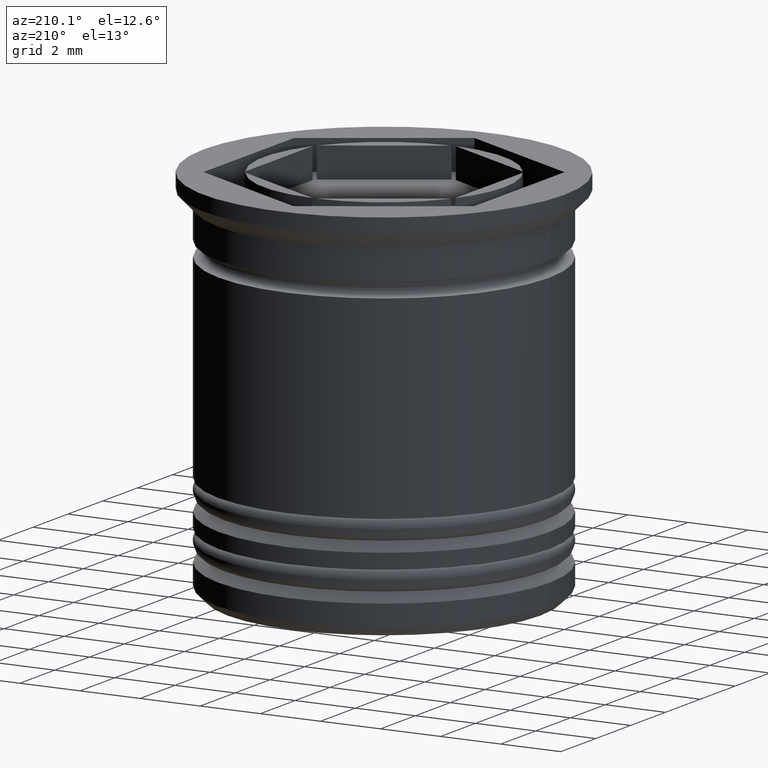
[diagram: clean part render]
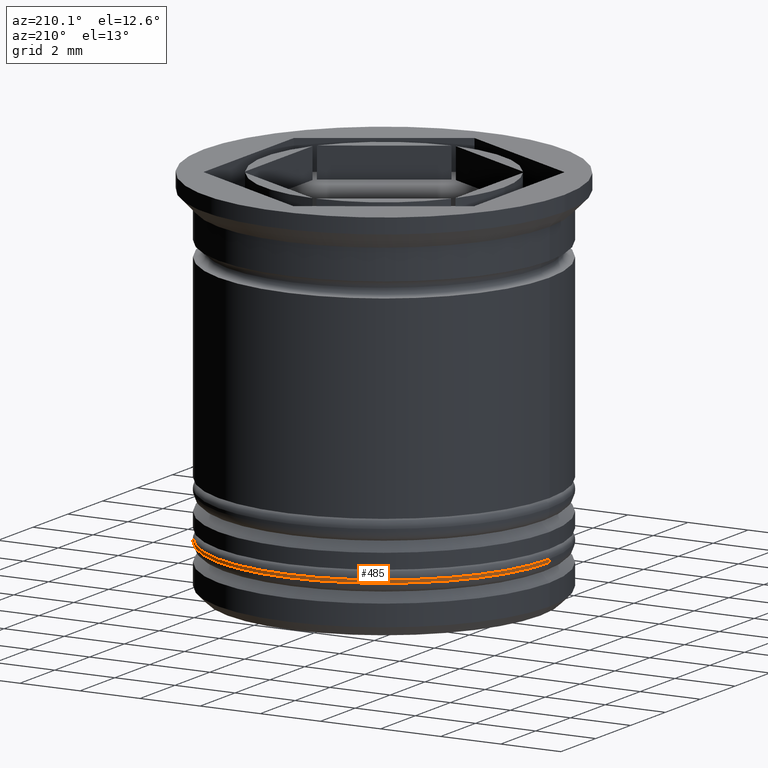
[diagram: same view with one face highlighted and labeled with its STEP entity id]
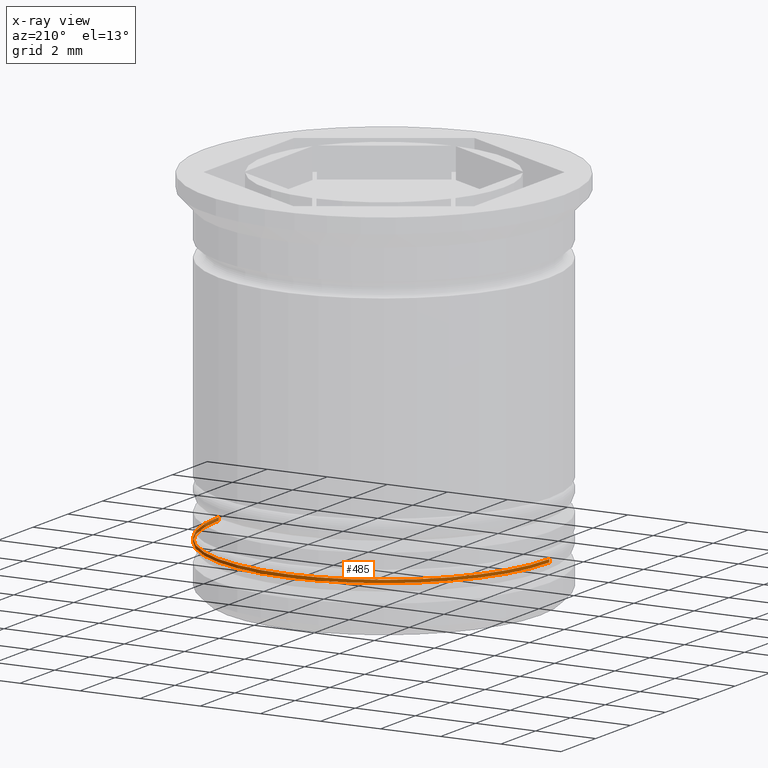
[diagram: x-ray of the same camera — body ghosted, the highlighted face saturated]
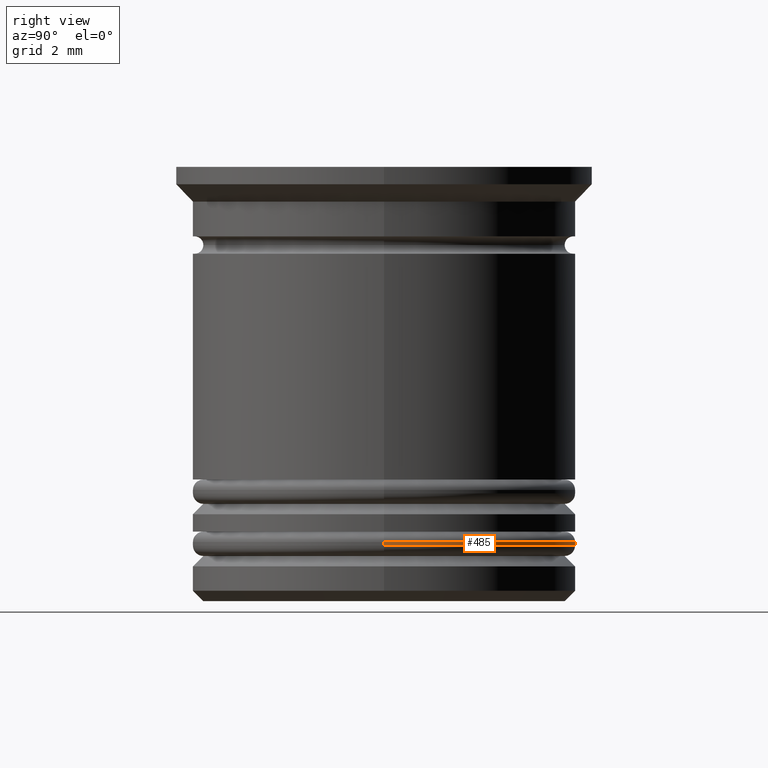
[diagram: same view with one face highlighted and labeled with its STEP entity id]
A machine part, auxiliary view. The second image highlights one B-rep face of the part: STEP entity #485.
The next image is the same camera in x-ray: the body ghosted, the highlighted face saturated — about 6% of this face is hidden behind the body in this view.
A second angle (right view) of the same face is appended — the face is thin or edge-on in the first view.
In plain terms, the highlighted cylindrical surface (partial cylindrical patch) has radius 5.5 mm, axis along (-0, -0, 1).
Its self-contained STEP definition (entity closure, byte-faithful):
#237 = CIRCLE ( 'NONE', #1361, 5.500000000000001776 ) ;
#265 = EDGE_CURVE ( 'NONE', #1371, #367, #237, .T. ) ;
#343 = CIRCLE ( 'NONE', #1303, 5.500000000000001776 ) ;
#367 = VERTEX_POINT ( 'NONE', #1965 ) ;
#378 = AXIS2_PLACEMENT_3D ( 'NONE', #1247, #1533, #1867 ) ;
#379 = DIRECTION ( 'NONE',  ( -0.000000000000000000, -0.000000000000000000, 1.000000000000000000 ) ) ;
#478 = ORIENTED_EDGE ( 'NONE', *, *, #518, .F. ) ;
#481 = EDGE_LOOP ( 'NONE', ( #1410, #1692, #1168, #478 ) ) ;
#485 = ADVANCED_FACE ( 'NONE', ( #934 ), #1395, .T. ) ;
#502 = VECTOR ( 'NONE', #379, 1000.000000000000000 ) ;
#515 = LINE ( 'NONE', #980, #886 ) ;
#518 = EDGE_CURVE ( 'NONE', #1371, #652, #1696, .T. ) ;
#594 = DIRECTION ( 'NONE',  ( -1.000000000000000000, 0.000000000000000000, 0.000000000000000000 ) ) ;
#597 = CARTESIAN_POINT ( 'NONE',  ( 5.500000000000001776, 0.000000000000000000, -10.90000000000000746 ) ) ;
#613 = CARTESIAN_POINT ( 'NONE',  ( 0.000000000000000000, 0.000000000000000000, -10.90000000000000746 ) ) ;
#652 = VERTEX_POINT ( 'NONE', #1193 ) ;
#684 = DIRECTION ( 'NONE',  ( -0.000000000000000000, -0.000000000000000000, 1.000000000000000000 ) ) ;
#720 = DIRECTION ( 'NONE',  ( 0.000000000000000000, 0.000000000000000000, 1.000000000000000000 ) ) ;
#886 = VECTOR ( 'NONE', #684, 1000.000000000000000 ) ;
#934 = FACE_OUTER_BOUND ( 'NONE', #481, .T. ) ;
#980 = CARTESIAN_POINT ( 'NONE',  ( -5.500000000000001776, 6.735557395310443009E-16, -26.75634918610405322 ) ) ;
#987 = EDGE_CURVE ( 'NONE', #367, #1505, #515, .T. ) ;
#1145 = EDGE_CURVE ( 'NONE', #1505, #652, #343, .T. ) ;
#1149 = CARTESIAN_POINT ( 'NONE',  ( 5.500000000000001776, 0.000000000000000000, -26.75634918610405322 ) ) ;
#1168 = ORIENTED_EDGE ( 'NONE', *, *, #1145, .T. ) ;
#1193 = CARTESIAN_POINT ( 'NONE',  ( 5.500000000000001776, 0.000000000000000000, -10.80000000000000426 ) ) ;
#1247 = CARTESIAN_POINT ( 'NONE',  ( 0.000000000000000000, 0.000000000000000000, -26.75634918610405322 ) ) ;
#1303 = AXIS2_PLACEMENT_3D ( 'NONE', #1360, #1839, #594 ) ;
#1360 = CARTESIAN_POINT ( 'NONE',  ( 0.000000000000000000, 0.000000000000000000, -10.80000000000000426 ) ) ;
#1361 = AXIS2_PLACEMENT_3D ( 'NONE', #613, #720, #1660 ) ;
#1371 = VERTEX_POINT ( 'NONE', #597 ) ;
#1395 = CYLINDRICAL_SURFACE ( 'NONE', #378, 5.500000000000001776 ) ;
#1410 = ORIENTED_EDGE ( 'NONE', *, *, #265, .T. ) ;
#1479 = CARTESIAN_POINT ( 'NONE',  ( -5.500000000000001776, 6.735557395310443009E-16, -10.80000000000000426 ) ) ;
#1505 = VERTEX_POINT ( 'NONE', #1479 ) ;
#1533 = DIRECTION ( 'NONE',  ( -0.000000000000000000, -0.000000000000000000, 1.000000000000000000 ) ) ;
#1660 = DIRECTION ( 'NONE',  ( 1.000000000000000000, 0.000000000000000000, 0.000000000000000000 ) ) ;
#1692 = ORIENTED_EDGE ( 'NONE', *, *, #987, .T. ) ;
#1696 = LINE ( 'NONE', #1149, #502 ) ;
#1839 = DIRECTION ( 'NONE',  ( 0.000000000000000000, 0.000000000000000000, -1.000000000000000000 ) ) ;
#1867 = DIRECTION ( 'NONE',  ( 1.000000000000000000, 0.000000000000000000, 0.000000000000000000 ) ) ;
#1965 = CARTESIAN_POINT ( 'NONE',  ( -5.500000000000001776, 6.735557395310443009E-16, -10.90000000000000746 ) ) ;